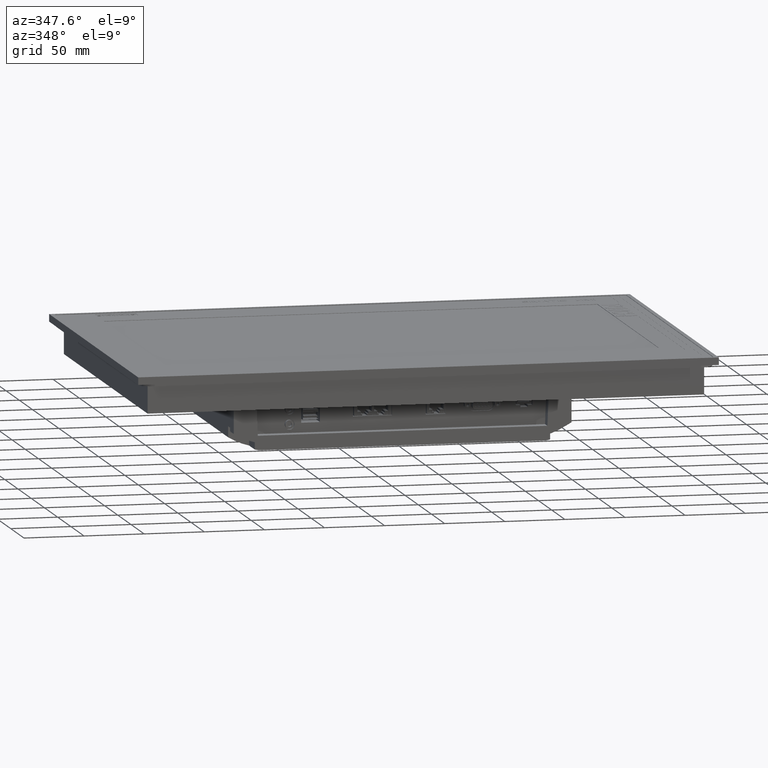
[diagram: clean part render]
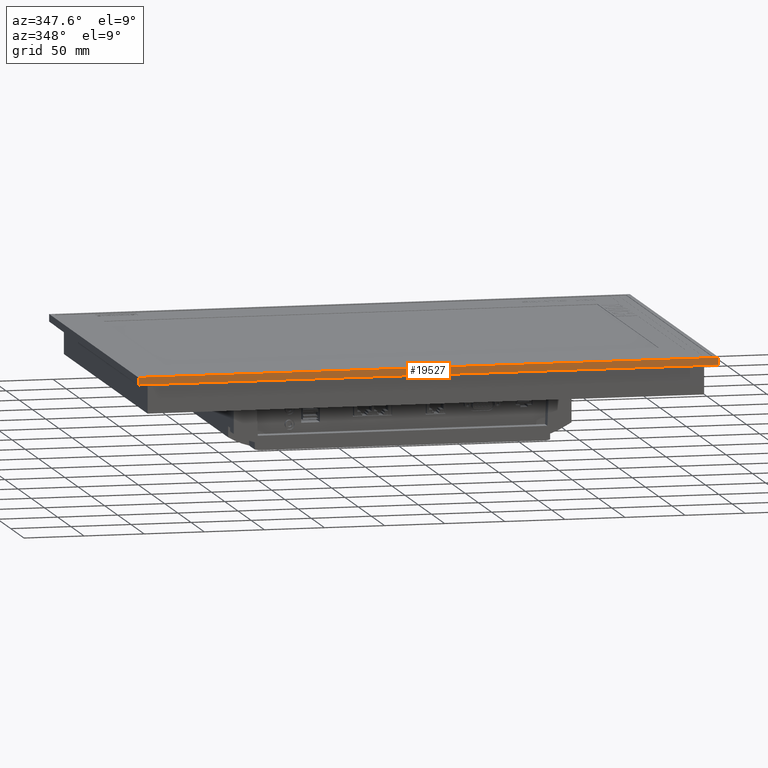
[diagram: same view with one face highlighted and labeled with its STEP entity id]
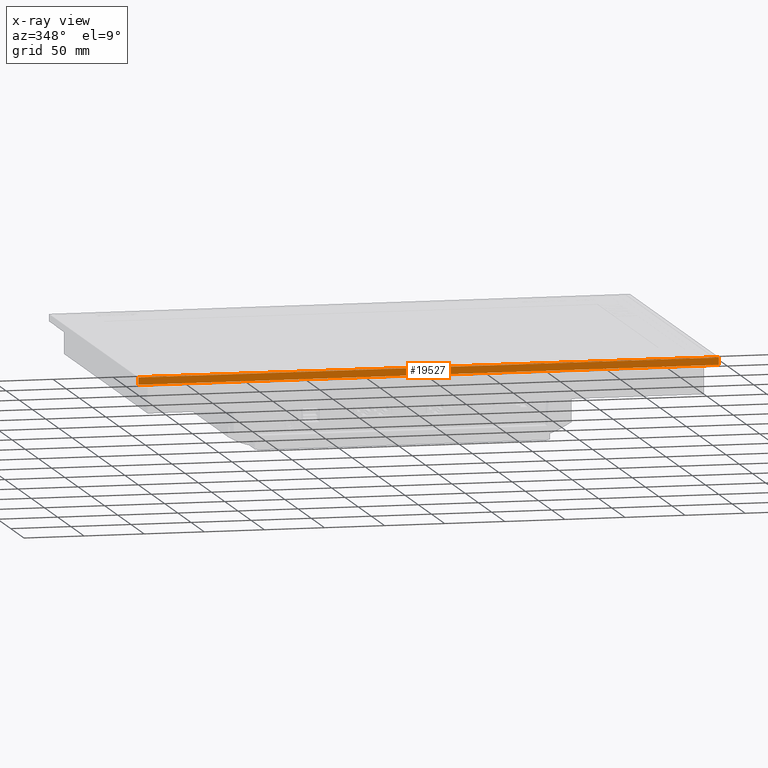
[diagram: x-ray of the same camera — body ghosted, the highlighted face saturated]
A machine part, auxiliary view. The second image highlights one B-rep face of the part: STEP entity #19527.
The next image is the same camera in x-ray: the body ghosted, the highlighted face saturated — about 0% of this face is hidden behind the body in this view.
In plain terms, the highlighted planar face has unit normal (0, -1, 0).
Its self-contained STEP definition (entity closure, byte-faithful):
#4085=LINE('',#66479,#9421);
#4097=LINE('',#66512,#9433);
#4101=LINE('',#66521,#9437);
#4103=LINE('',#66524,#9439);
#9421=VECTOR('',#54825,1.);
#9433=VECTOR('',#54847,1.);
#9437=VECTOR('',#54853,1.);
#9439=VECTOR('',#54857,1.);
#14723=FACE_OUTER_BOUND('',#23214,.T.);
#17142=PLANE('',#51043);
#19527=ADVANCED_FACE('',(#14723),#17142,.T.);
#23214=EDGE_LOOP('',(#27157,#27158,#27159,#27160));
#27157=ORIENTED_EDGE('',*,*,#44282,.T.);
#27158=ORIENTED_EDGE('',*,*,#44286,.T.);
#27159=ORIENTED_EDGE('',*,*,#44266,.T.);
#27160=ORIENTED_EDGE('',*,*,#44288,.T.);
#39701=VERTEX_POINT('',#66480);
#39702=VERTEX_POINT('',#66481);
#39717=VERTEX_POINT('',#66513);
#39718=VERTEX_POINT('',#66514);
#44266=EDGE_CURVE('',#39701,#39702,#4085,.T.);
#44282=EDGE_CURVE('',#39717,#39718,#4097,.T.);
#44286=EDGE_CURVE('',#39718,#39701,#4101,.T.);
#44288=EDGE_CURVE('',#39702,#39717,#4103,.T.);
#51043=AXIS2_PLACEMENT_3D('',#66528,#54863,#54864);
#54825=DIRECTION('',(-1.,0.,0.));
#54847=DIRECTION('',(1.,0.,0.));
#54853=DIRECTION('',(0.,0.,-1.));
#54857=DIRECTION('',(0.,0.,1.));
#54863=DIRECTION('',(0.,1.,0.));
#54864=DIRECTION('',(0.,0.,1.));
#66479=CARTESIAN_POINT('',(241.49999999999,154.5,-2.5));
#66480=CARTESIAN_POINT('',(241.49999999999,154.5,-2.50000000000547));
#66481=CARTESIAN_POINT('',(-241.5,154.5,-2.5));
#66512=CARTESIAN_POINT('',(-241.5,154.5,3.7));
#66513=CARTESIAN_POINT('',(-241.5,154.5,3.7));
#66514=CARTESIAN_POINT('',(241.49999999999,154.5,3.7));
#66521=CARTESIAN_POINT('',(241.49999999999,154.5,3.7));
#66524=CARTESIAN_POINT('',(-241.5,154.5,-2.49999999999984));
#66528=CARTESIAN_POINT('',(241.49999999999,154.5,3.7));